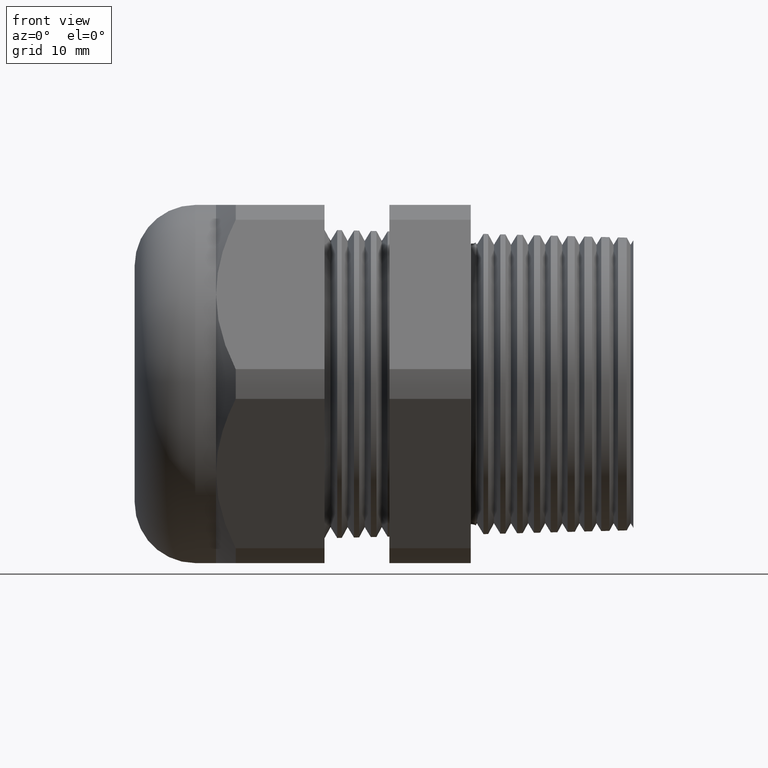
[diagram: clean part render]
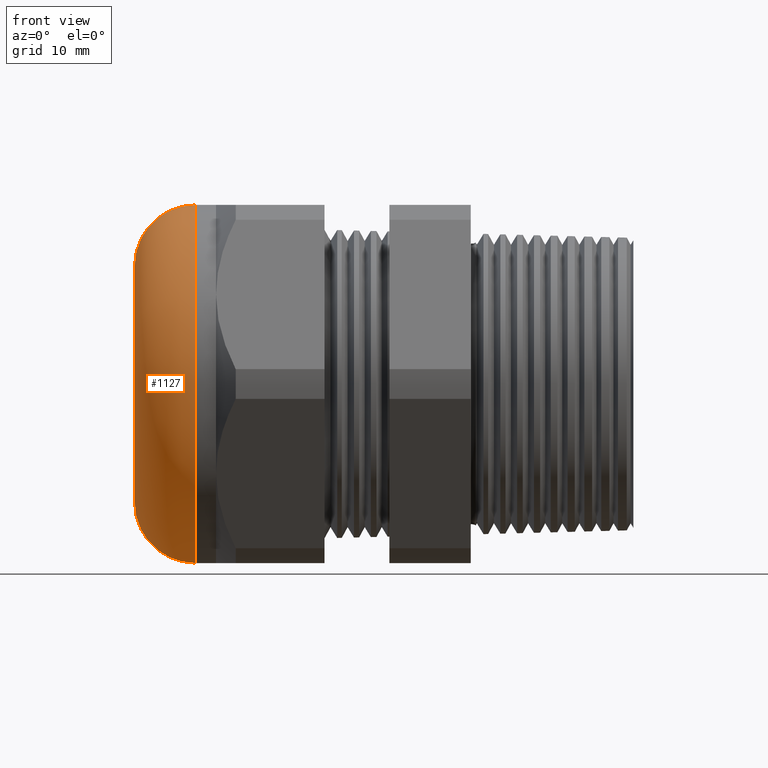
[diagram: same view with one face highlighted and labeled with its STEP entity id]
A machine part, front view. The second image highlights one B-rep face of the part: STEP entity #1127.
In plain terms, the highlighted toroidal blend (fillet) surface has major radius 10.922 mm and minor (blend) radius 5.588 mm.
Its self-contained STEP definition (entity closure, byte-faithful):
#73 = VERTEX_POINT ( 'NONE', #1347 ) ;
#469 = EDGE_CURVE ( 'NONE', #482, #477, #2142, .T. ) ;
#477 = VERTEX_POINT ( 'NONE', #2125 ) ;
#481 = VERTEX_POINT ( 'NONE', #2177 ) ;
#482 = VERTEX_POINT ( 'NONE', #2176 ) ;
#483 = EDGE_CURVE ( 'NONE', #73, #481, #2175, .T. ) ;
#716 = EDGE_CURVE ( 'NONE', #482, #73, #2634, .T. ) ;
#734 = EDGE_CURVE ( 'NONE', #481, #477, #2658, .T. ) ;
#1051 = EDGE_LOOP ( 'NONE', ( #1052, #1053, #1054, #1055 ) ) ;
#1052 = ORIENTED_EDGE ( 'NONE', *, *, #483, .F. ) ;
#1053 = ORIENTED_EDGE ( 'NONE', *, *, #716, .F. ) ;
#1054 = ORIENTED_EDGE ( 'NONE', *, *, #469, .T. ) ;
#1055 = ORIENTED_EDGE ( 'NONE', *, *, #734, .F. ) ;
#1127 = ADVANCED_FACE ( 'NONE', ( #3206 ), #3205, .T. ) ;
#1347 = CARTESIAN_POINT ( 'NONE',  ( -1.310000000000000100, 0.0000000000000000000, -0.6500000000000001300 ) ) ;
#2125 = CARTESIAN_POINT ( 'NONE',  ( -1.530000000000000000, 0.0000000000000000000, 0.4300000000000002200 ) ) ;
#2138 = DIRECTION ( 'NONE',  ( 0.0000000000000000000, 0.0000000000000000000, -1.000000000000000000 ) ) ;
#2139 = DIRECTION ( 'NONE',  ( 0.0000000000000000000, -1.000000000000000000, 0.0000000000000000000 ) ) ;
#2140 = CARTESIAN_POINT ( 'NONE',  ( -1.310000000000000100, 0.0000000000000000000, 0.4300000000000002200 ) ) ;
#2141 = AXIS2_PLACEMENT_3D ( 'NONE', #2140, #2139, #2138 ) ;
#2142 = CIRCLE ( 'NONE', #2141, 0.2200000000000000000 ) ;
#2171 = DIRECTION ( 'NONE',  ( 0.0000000000000000000, -1.224646799147353200E-016, 1.000000000000000000 ) ) ;
#2172 = DIRECTION ( 'NONE',  ( 0.0000000000000000000, 1.000000000000000000, 1.224646799147353200E-016 ) ) ;
#2173 = CARTESIAN_POINT ( 'NONE',  ( -1.310000000000000100, 5.265981236333621300E-017, -0.4300000000000002200 ) ) ;
#2174 = AXIS2_PLACEMENT_3D ( 'NONE', #2173, #2172, #2171 ) ;
#2175 = CIRCLE ( 'NONE', #2174, 0.2200000000000000000 ) ;
#2176 = CARTESIAN_POINT ( 'NONE',  ( -1.310000000000000100, 7.960204194457797900E-017, 0.6500000000000001300 ) ) ;
#2177 = CARTESIAN_POINT ( 'NONE',  ( -1.530000000000000000, 6.613092715395709900E-017, -0.4300000000000002200 ) ) ;
#2626 = DIRECTION ( 'NONE',  ( 0.0000000000000000000, 0.0000000000000000000, 1.000000000000000000 ) ) ;
#2627 = DIRECTION ( 'NONE',  ( 1.000000000000000000, 0.0000000000000000000, 0.0000000000000000000 ) ) ;
#2628 = CARTESIAN_POINT ( 'NONE',  ( -1.310000000000000100, 0.0000000000000000000, 0.0000000000000000000 ) ) ;
#2629 = AXIS2_PLACEMENT_3D ( 'NONE', #2628, #2627, #2626 ) ;
#2634 = CIRCLE ( 'NONE', #2629, 0.6500000000000001300 ) ;
#2654 = DIRECTION ( 'NONE',  ( 0.0000000000000000000, 0.0000000000000000000, 1.000000000000000000 ) ) ;
#2655 = DIRECTION ( 'NONE',  ( -1.000000000000000000, 0.0000000000000000000, 0.0000000000000000000 ) ) ;
#2656 = CARTESIAN_POINT ( 'NONE',  ( -1.530000000000000000, 0.0000000000000000000, 0.0000000000000000000 ) ) ;
#2657 = AXIS2_PLACEMENT_3D ( 'NONE', #2656, #2655, #2654 ) ;
#2658 = CIRCLE ( 'NONE', #2657, 0.4300000000000002200 ) ;
#3202 = DIRECTION ( 'NONE',  ( 0.0000000000000000000, 0.0000000000000000000, 1.000000000000000000 ) ) ;
#3203 = DIRECTION ( 'NONE',  ( -1.000000000000000000, 0.0000000000000000000, 0.0000000000000000000 ) ) ;
#3204 = AXIS2_PLACEMENT_3D ( 'NONE', #3210, #3203, #3202 ) ;
#3205 = TOROIDAL_SURFACE ( 'NONE', #3204, 0.4300000000000002200, 0.2200000000000000000 ) ;
#3206 = FACE_OUTER_BOUND ( 'NONE', #1051, .T. ) ;
#3210 = CARTESIAN_POINT ( 'NONE',  ( -1.310000000000000100, 0.0000000000000000000, 0.0000000000000000000 ) ) ;